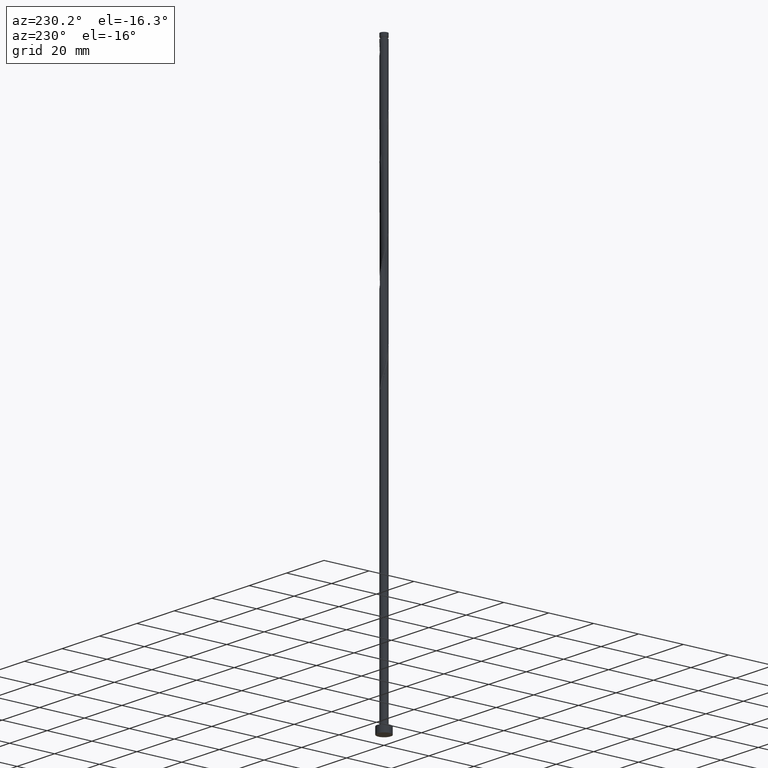
[diagram: clean part render]
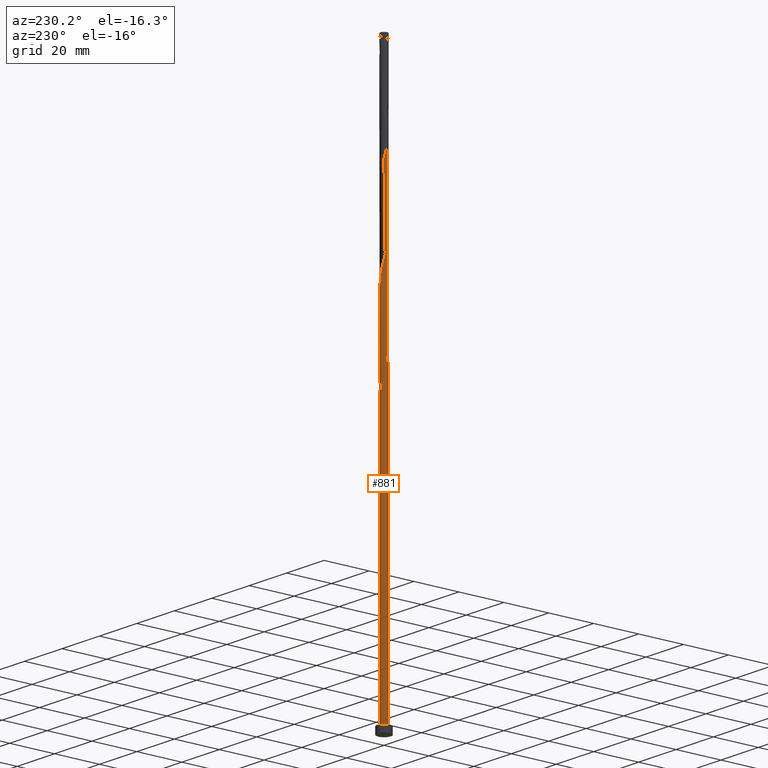
[diagram: same view with one face highlighted and labeled with its STEP entity id]
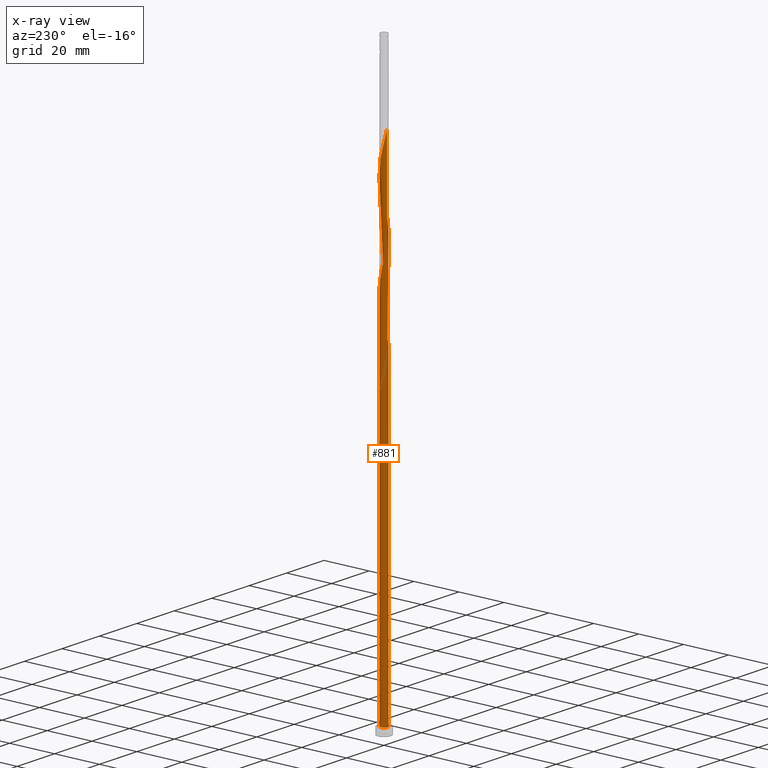
[diagram: x-ray of the same camera — body ghosted, the highlighted face saturated]
A machine part, auxiliary view. The second image highlights one B-rep face of the part: STEP entity #881.
The next image is the same camera in x-ray: the body ghosted, the highlighted face saturated — about 0% of this face is hidden behind the body in this view.
In plain terms, the highlighted cylindrical surface (bore or boss wall) has radius 1.6 mm, axis along (-0, -0, -1).
Its self-contained STEP definition (entity closure, byte-faithful):
#4 = CARTESIAN_POINT ( 'NONE',  ( -1.547645113330142097, 0.4500416048433590888, 171.7273183717296945 ) ) ;
#14 = CARTESIAN_POINT ( 'NONE',  ( -1.109569170053844367, -1.152760277276255296, 178.9388568332681189 ) ) ;
#23 = CARTESIAN_POINT ( 'NONE',  ( 1.456861787004775088, 0.6894175632154342370, 155.7016773460886441 ) ) ;
#33 = CARTESIAN_POINT ( 'NONE',  ( 1.353200698052672291, 0.8537258756707370999, 156.5029593973705744 ) ) ;
#44 = CARTESIAN_POINT ( 'NONE',  ( 0.5087856495666246426, -1.529339728673692056, 144.4837286281399145 ) ) ;
#66 = CARTESIAN_POINT ( 'NONE',  ( 1.353200698052672291, 0.8537258756707370999, 198.1696260640372884 ) ) ;
#71 = VERTEX_POINT ( 'NONE', #102 ) ;
#75 = CARTESIAN_POINT ( 'NONE',  ( 0.06610299024276559965, 1.598633915154114238, 204.5798824742936404 ) ) ;
#85 = CARTESIAN_POINT ( 'NONE',  ( 1.456861787004775088, 0.6894175632154342370, 197.3683440127553581 ) ) ;
#88 = EDGE_CURVE ( 'NONE', #1591, #71, #1566, .T. ) ;
#99 = CIRCLE ( 'NONE', #187, 1.600000000000000089 ) ;
#102 = CARTESIAN_POINT ( 'NONE',  ( 1.600000000000000089, 0.000000000000000000, 3.000000000000000000 ) ) ;
#118 = DIRECTION ( 'NONE',  ( 1.000000000000000000, 0.000000000000000000, 0.000000000000000000 ) ) ;
#123 = CARTESIAN_POINT ( 'NONE',  ( -1.471308233388665343, 0.6286907684726514844, 129.2593696537809080 ) ) ;
#125 = CARTESIAN_POINT ( 'NONE',  ( -1.579516453325390479, 0.3207344954616279109, 133.2657799101911849 ) ) ;
#144 = CARTESIAN_POINT ( 'NONE',  ( -1.109569170053844367, -1.152760277276255296, 137.2721901666013764 ) ) ;
#147 = CARTESIAN_POINT ( 'NONE',  ( 0.000000000000000000, 0.000000000000000000, 250.0000000000000000 ) ) ;
#155 = CARTESIAN_POINT ( 'NONE',  ( -0.5087856495666250867, 1.529339728673692056, 165.3170619614732288 ) ) ;
#165 = CARTESIAN_POINT ( 'NONE',  ( 0.6333082990155211034, 1.482114516932723891, 160.5093696537809365 ) ) ;
#166 = EDGE_CURVE ( 'NONE', #508, #1376, #555, .T. ) ;
#173 = DIRECTION ( 'NONE',  ( -1.000000000000000000, 0.000000000000000000, 0.000000000000000000 ) ) ;
#176 = CARTESIAN_POINT ( 'NONE',  ( -0.8599962163594112585, 1.363139519914286391, 166.9196260640374021 ) ) ;
#183 = CARTESIAN_POINT ( 'NONE',  ( -0.3183959798741197167, 1.568000000000001837, 164.5157799101912133 ) ) ;
#187 = AXIS2_PLACEMENT_3D ( 'NONE', #1352, #435, #1607 ) ;
#190 = EDGE_CURVE ( 'NONE', #1287, #511, #1426, .T. ) ;
#194 = CARTESIAN_POINT ( 'NONE',  ( -0.3183959798741197167, 1.568000000000001837, 206.1824465768578136 ) ) ;
#203 = CARTESIAN_POINT ( 'NONE',  ( -1.010611572687927895, 1.240429058491149705, 209.3875747819859612 ) ) ;
#210 = CARTESIAN_POINT ( 'NONE',  ( 1.109569170053844811, 1.152760277276255296, 199.7721901666013764 ) ) ;
#233 = CARTESIAN_POINT ( 'NONE',  ( 0.1280063101816154569, 1.606660271326310063, 123.6503952948065574 ) ) ;
#235 = ORIENTED_EDGE ( 'NONE', *, *, #88, .T. ) ;
#245 = DIRECTION ( 'NONE',  ( -0.000000000000000000, -0.000000000000000000, -1.000000000000000000 ) ) ;
#256 = CARTESIAN_POINT ( 'NONE',  ( -1.394971353447189033, 0.8073399321019437691, 128.4580876024988925 ) ) ;
#281 = CARTESIAN_POINT ( 'NONE',  ( -1.353200698052672291, -0.8537258756707369889, 135.6696260640372600 ) ) ;
#288 = CARTESIAN_POINT ( 'NONE',  ( -1.600000000000000311, -2.108787333193360796E-15, 134.5937017860830451 ) ) ;
#290 = CARTESIAN_POINT ( 'NONE',  ( -0.4467602948413325059, -1.536361037957319819, 140.4773183717295808 ) ) ;
#299 = CARTESIAN_POINT ( 'NONE',  ( -1.579516453325393144, -0.3207344954616280219, 133.2657799101911849 ) ) ;
#308 = CARTESIAN_POINT ( 'NONE',  ( -0.6333082990155211034, -1.482114516932723891, 181.3427029871143077 ) ) ;
#315 = CARTESIAN_POINT ( 'NONE',  ( 0.06610299024276559965, 1.598633915154114238, 162.9132158076270116 ) ) ;
#323 = CARTESIAN_POINT ( 'NONE',  ( 1.547645113330142097, -0.4500416048433600325, 192.5606517050629805 ) ) ;
#333 = CARTESIAN_POINT ( 'NONE',  ( -1.600000000000002309, -2.467729857992213798E-16, 215.2711913676326390 ) ) ;
#349 = CARTESIAN_POINT ( 'NONE',  ( 1.579516453325393144, 0.3207344954616277999, 195.7657799101912417 ) ) ;
#368 = CARTESIAN_POINT ( 'NONE',  ( -0.06610299024276375390, 1.598633915154112239, 124.4516773460886156 ) ) ;
#374 = CARTESIAN_POINT ( 'NONE',  ( -1.010611572687927895, 1.240429058491149705, 126.0542414486526610 ) ) ;
#384 = CARTESIAN_POINT ( 'NONE',  ( -0.2602122906671429092, 1.590607558981914416, 125.2529593973706170 ) ) ;
#389 = CARTESIAN_POINT ( 'NONE',  ( 0.3183959798741202718, 1.567999999999999838, 122.8491132435244850 ) ) ;
#392 = CARTESIAN_POINT ( 'NONE',  ( -0.5087856495666250867, 1.529339728673692056, 123.6503952948065859 ) ) ;
#412 = CARTESIAN_POINT ( 'NONE',  ( -0.6333082990155211034, -1.482114516932723891, 139.6760363204475937 ) ) ;
#419 = CARTESIAN_POINT ( 'NONE',  ( -1.600000000000000089, 0.000000000000000000, 250.0000000000000000 ) ) ;
#423 = CARTESIAN_POINT ( 'NONE',  ( -0.06610299024276471147, -1.598633915154114016, 142.0798824742936688 ) ) ;
#432 = CARTESIAN_POINT ( 'NONE',  ( 1.518189120165084116, 0.5050760293385301303, 154.9003952948065432 ) ) ;
#435 = DIRECTION ( 'NONE',  ( 0.000000000000000000, 0.000000000000000000, 1.000000000000000000 ) ) ;
#438 = EDGE_CURVE ( 'NONE', #1327, #1287, #844, .T. ) ;
#444 = CARTESIAN_POINT ( 'NONE',  ( -1.456861787004774644, -0.6894175632154345701, 176.5350106794219869 ) ) ;
#452 = CARTESIAN_POINT ( 'NONE',  ( -1.010611572687927895, 1.240429058491149705, 167.7209081153193324 ) ) ;
#464 = CARTESIAN_POINT ( 'NONE',  ( 1.161226929016444753, -1.117718597068014574, 189.3555234999347476 ) ) ;
#478 = CARTESIAN_POINT ( 'NONE',  ( 1.249539609100571269, 1.018034188126039741, 198.9709081153193893 ) ) ;
#485 = CARTESIAN_POINT ( 'NONE',  ( -0.06610299024276471147, -1.598633915154114016, 183.7465491409603544 ) ) ;
#492 = CARTESIAN_POINT ( 'NONE',  ( -1.600000000000002753, -1.742366839127836297E-15, 131.9378580342993246 ) ) ;
#508 = VERTEX_POINT ( 'NONE', #288 ) ;
#511 = VERTEX_POINT ( 'NONE', #666 ) ;
#513 = EDGE_CURVE ( 'NONE', #1327, #1376, #1007, .T. ) ;
#523 = CARTESIAN_POINT ( 'NONE',  ( -0.6843909329630177840, 1.446239624293988335, 124.4516773460885872 ) ) ;
#534 = CARTESIAN_POINT ( 'NONE',  ( -1.579516453325393144, -0.3207344954616280219, 174.9324465768578136 ) ) ;
#544 = CARTESIAN_POINT ( 'NONE',  ( 1.278099141231816338, -0.9625292645849792272, 148.4901388845501629 ) ) ;
#552 = CARTESIAN_POINT ( 'NONE',  ( 0.1280063101816147353, -1.606660271326313172, 142.8811645255757696 ) ) ;
#555 =( BOUNDED_CURVE ( )  B_SPLINE_CURVE ( 2, ( #1320, #1049, #1574, #125, #754, #1311, #784, #1583, #660, #1700, #1022, #1561, #1015, #384, #368, #233, #747 ),
 .UNSPECIFIED., .F., .T. ) 
 B_SPLINE_CURVE_WITH_KNOTS ( ( 3, 2, 2, 2, 2, 2, 2, 2, 3 ),
 ( 0.9295271625973832164, 0.9326923076923077094, 0.9423076923076922906, 0.9519230769230768718, 0.9615384615384615641, 0.9711538461538461453, 0.9807692307692307265, 0.9903846153846154188, 1.000000000000000000 ),
 .UNSPECIFIED. ) 
 CURVE ( )  GEOMETRIC_REPRESENTATION_ITEM ( )  RATIONAL_B_SPLINE_CURVE ( ( 0.9061636035683098278, 0.9069090390690984771, 0.9090909090909551349, 0.9024626128164584538, 0.9090909090909551349, 0.9024626128164584538, 0.9090909090909551349, 0.9024626128164584538, 0.9090909090909551349, 0.9024626128164584538, 0.9090909090909551349, 0.9024626128164584538, 0.9090909090909551349, 0.9024626128164584538, 0.9090909090909551349, 0.9024626128164584538, 0.9090909090909551349 ) ) 
 REPRESENTATION_ITEM ( '' )  );
#561 = CARTESIAN_POINT ( 'NONE',  ( -1.278099141231816560, 0.9625292645849791162, 169.3234722178834204 ) ) ;
#572 = CARTESIAN_POINT ( 'NONE',  ( -1.594945909006417306, -0.1270730000578373931, 132.4644978589090840 ) ) ;
#581 = CARTESIAN_POINT ( 'NONE',  ( 1.610375364687443245, -0.06658849534595265296, 194.1632158076270969 ) ) ;
#587 = ORIENTED_EDGE ( 'NONE', *, *, #190, .F. ) ;
#599 = CARTESIAN_POINT ( 'NONE',  ( 0.1280063101816147353, -1.606660271326313172, 184.5478311922424837 ) ) ;
#614 = CARTESIAN_POINT ( 'NONE',  ( 0.4467602948413332276, 1.536361037957319819, 202.9773183717295524 ) ) ;
#626 = LINE ( 'NONE', #1113, #1313 ) ;
#629 = CARTESIAN_POINT ( 'NONE',  ( -1.278099141231816560, 0.9625292645849791162, 127.6568055512168058 ) ) ;
#651 = CARTESIAN_POINT ( 'NONE',  ( -1.547645113330142097, 0.4500416048433590888, 130.0606517050630089 ) ) ;
#660 = CARTESIAN_POINT ( 'NONE',  ( -1.109569170053842813, 1.152760277276254630, 129.2593696537809365 ) ) ;
#666 = CARTESIAN_POINT ( 'NONE',  ( -1.600000000000002309, -2.467729857992213798E-16, 215.2711913676326390 ) ) ;
#669 = CARTESIAN_POINT ( 'NONE',  ( -1.594945909006417306, -0.1270730000578373931, 174.1311645255757412 ) ) ;
#677 = CARTESIAN_POINT ( 'NONE',  ( -0.8014535150113197837, -1.384800441679596705, 138.8747542691655497 ) ) ;
#686 = CARTESIAN_POINT ( 'NONE',  ( -0.6843909329630177840, 1.446239624293988335, 166.1183440127552728 ) ) ;
#694 = CARTESIAN_POINT ( 'NONE',  ( -1.353200698052672291, -0.8537258756707369889, 177.3362927307039172 ) ) ;
#700 = CARTESIAN_POINT ( 'NONE',  ( -0.1280063101816145688, 1.606660271326313172, 205.3811645255757696 ) ) ;
#711 = CARTESIAN_POINT ( 'NONE',  ( 0.8014535150113202278, 1.384800441679596705, 201.3747542691654360 ) ) ;
#718 = CARTESIAN_POINT ( 'NONE',  ( -1.161226929016444753, 1.117718597068014352, 210.1888568332681189 ) ) ;
#723 = EDGE_CURVE ( 'NONE', #71, #1591, #99, .T. ) ;
#726 = CARTESIAN_POINT ( 'NONE',  ( 0.6843909329630173399, -1.446239624293988557, 186.9516773460886156 ) ) ;
#747 = CARTESIAN_POINT ( 'NONE',  ( 0.3183959798741203273, 1.567999999999999838, 122.8491132435244850 ) ) ;
#754 = CARTESIAN_POINT ( 'NONE',  ( -1.518189120165081230, 0.5050760293385311295, 132.4644978589091409 ) ) ;
#778 = LINE ( 'NONE', #419, #785 ) ;
#784 = CARTESIAN_POINT ( 'NONE',  ( -1.353200698052670070, 0.8537258756707366558, 130.8619337563450244 ) ) ;
#785 = VECTOR ( 'NONE', #245, 1000.000000000000000 ) ;
#788 = EDGE_LOOP ( 'NONE', ( #1175, #587, #1243, #235, #1240, #794, #822, #1560, #934 ) ) ;
#793 = CARTESIAN_POINT ( 'NONE',  ( 0.000000000000000000, 0.000000000000000000, 122.8491132435244850 ) ) ;
#794 = ORIENTED_EDGE ( 'NONE', *, *, #1568, .F. ) ;
#796 = CARTESIAN_POINT ( 'NONE',  ( -0.1280063101816145688, 1.606660271326313172, 163.7144978589091124 ) ) ;
#804 = CARTESIAN_POINT ( 'NONE',  ( 0.4467602948413332276, 1.536361037957319819, 161.3106517050628952 ) ) ;
#814 = CARTESIAN_POINT ( 'NONE',  ( 0.3183959798741198832, -1.568000000000001837, 143.6824465768577568 ) ) ;
#816 = AXIS2_PLACEMENT_3D ( 'NONE', #1030, #1433, #118 ) ;
#822 = ORIENTED_EDGE ( 'NONE', *, *, #438, .F. ) ;
#824 = CARTESIAN_POINT ( 'NONE',  ( -0.4467602948413325059, -1.536361037957319819, 182.1439850383962664 ) ) ;
#832 = CARTESIAN_POINT ( 'NONE',  ( 1.010611572687927673, -1.240429058491149705, 146.8875747819860180 ) ) ;
#839 = CARTESIAN_POINT ( 'NONE',  ( 0.6333082990155211034, 1.482114516932723891, 202.1760363204476221 ) ) ;
#844 =( BOUNDED_CURVE ( )  B_SPLINE_CURVE ( 2, ( #1572, #392, #523, #1045, #374, #902, #629, #256, #123, #651, #1581, #1276, #492 ),
 .UNSPECIFIED., .F., .T. ) 
 B_SPLINE_CURVE_WITH_KNOTS ( ( 3, 2, 2, 2, 2, 2, 3 ),
 ( 0.000000000000000000, 0.009615384615384581224, 0.01923076923076927347, 0.02884615384615385469, 0.03846153846153843592, 0.04807692307692312816, 0.05452716259738357024 ),
 .UNSPECIFIED. ) 
 CURVE ( )  GEOMETRIC_REPRESENTATION_ITEM ( )  RATIONAL_B_SPLINE_CURVE ( ( 0.9090909090909612411, 0.9024626128164643379, 0.9090909090909612411, 0.9024626128164643379, 0.9090909090909612411, 0.9024626128164643379, 0.9090909090909612411, 0.9024626128164643379, 0.9090909090909612411, 0.9024626128164643379, 0.9090909090909612411, 0.9046444828383208847, 0.9061636035683160451 ) ) 
 REPRESENTATION_ITEM ( '' )  );
#881 = ADVANCED_FACE ( 'NONE', ( #967 ), #1333, .T. ) ;
#902 = CARTESIAN_POINT ( 'NONE',  ( -1.161226929016444753, 1.117718597068014352, 126.8555234999347761 ) ) ;
#924 = CARTESIAN_POINT ( 'NONE',  ( 1.579516453325393144, 0.3207344954616277999, 154.0991132435245561 ) ) ;
#934 = ORIENTED_EDGE ( 'NONE', *, *, #166, .F. ) ;
#936 = CARTESIAN_POINT ( 'NONE',  ( 0.8599962163594108144, -1.363139519914286391, 146.0862927307039740 ) ) ;
#949 = CARTESIAN_POINT ( 'NONE',  ( 0.6843909329630173399, -1.446239624293988557, 145.2850106794219300 ) ) ;
#957 = CARTESIAN_POINT ( 'NONE',  ( -0.8014535150113197837, -1.384800441679596705, 180.5414209358321784 ) ) ;
#966 = CARTESIAN_POINT ( 'NONE',  ( 0.2602122906671444080, 1.590607558981916636, 162.1119337563449960 ) ) ;
#967 = FACE_OUTER_BOUND ( 'NONE', #788, .T. ) ;
#973 = CARTESIAN_POINT ( 'NONE',  ( 0.5087856495666246426, -1.529339728673692056, 186.1503952948066285 ) ) ;
#981 = CARTESIAN_POINT ( 'NONE',  ( -0.5087856495666250867, 1.529339728673692056, 206.9837286281399429 ) ) ;
#996 = CARTESIAN_POINT ( 'NONE',  ( -1.579010239008791894, 0.2583150500946561068, 214.1952670896782820 ) ) ;
#1003 = CARTESIAN_POINT ( 'NONE',  ( 1.394971353447188811, -0.8073399321019441022, 190.9580876024988640 ) ) ;
#1007 = CIRCLE ( 'NONE', #1682, 1.600000000000000089 ) ;
#1015 = CARTESIAN_POINT ( 'NONE',  ( -0.4467602948413312292, 1.536361037957318043, 126.0542414486527036 ) ) ;
#1022 = CARTESIAN_POINT ( 'NONE',  ( -0.8014535150113182294, 1.384800441679596039, 127.6568055512168058 ) ) ;
#1030 = CARTESIAN_POINT ( 'NONE',  ( 0.000000000000000000, 0.000000000000000000, 3.000000000000000000 ) ) ;
#1045 = CARTESIAN_POINT ( 'NONE',  ( -0.8599962163594112585, 1.363139519914286391, 125.2529593973706312 ) ) ;
#1049 = CARTESIAN_POINT ( 'NONE',  ( -1.600000000000000311, 0.06363700853882878206, 134.3295308704500712 ) ) ;
#1056 = CARTESIAN_POINT ( 'NONE',  ( 1.610375364687443245, -0.06658849534595265296, 152.4965491409603828 ) ) ;
#1065 = CARTESIAN_POINT ( 'NONE',  ( 1.547645113330142097, -0.4500416048433600325, 150.8939850383963233 ) ) ;
#1073 = CARTESIAN_POINT ( 'NONE',  ( 1.109569170053844811, 1.152760277276255296, 158.1055234999346908 ) ) ;
#1082 = CARTESIAN_POINT ( 'NONE',  ( -1.610375364687443245, 0.06658849534595275010, 173.3298824742937256 ) ) ;
#1091 = CARTESIAN_POINT ( 'NONE',  ( 1.594945909006417528, 0.1270730000578368657, 153.2978311922424552 ) ) ;
#1113 = CARTESIAN_POINT ( 'NONE',  ( -1.600000000000000089, 0.000000000000000000, 250.0000000000000000 ) ) ;
#1115 = CARTESIAN_POINT ( 'NONE',  ( -1.471308233388665343, 0.6286907684726514844, 212.5927029871142508 ) ) ;
#1150 = EDGE_CURVE ( 'NONE', #511, #508, #626, .T. ) ;
#1171 = CARTESIAN_POINT ( 'NONE',  ( -1.600000000000000089, 0.000000000000000000, 3.000000000000000000 ) ) ;
#1175 = ORIENTED_EDGE ( 'NONE', *, *, #1150, .F. ) ;
#1184 = CARTESIAN_POINT ( 'NONE',  ( -1.161226929016444753, 1.117718597068014352, 168.5221901666014617 ) ) ;
#1193 = CARTESIAN_POINT ( 'NONE',  ( -1.249539609100570825, -1.018034188126040407, 178.1375747819860464 ) ) ;
#1203 = CARTESIAN_POINT ( 'NONE',  ( -0.2602122906671441860, -1.590607558981916636, 141.2786004230117101 ) ) ;
#1215 = CARTESIAN_POINT ( 'NONE',  ( 1.394971353447188811, -0.8073399321019441022, 149.2914209358322353 ) ) ;
#1223 = CARTESIAN_POINT ( 'NONE',  ( -1.249539609100570825, -1.018034188126040407, 136.4709081153193893 ) ) ;
#1233 = CARTESIAN_POINT ( 'NONE',  ( -1.278099141231816560, 0.9625292645849791162, 210.9901388845500776 ) ) ;
#1240 = ORIENTED_EDGE ( 'NONE', *, *, #723, .T. ) ;
#1243 = ORIENTED_EDGE ( 'NONE', *, *, #1568, .T. ) ;
#1253 = CARTESIAN_POINT ( 'NONE',  ( -0.6843909329630177840, 1.446239624293988335, 207.7850106794219016 ) ) ;
#1263 = CARTESIAN_POINT ( 'NONE',  ( 1.594945909006417528, 0.1270730000578368657, 194.9644978589090556 ) ) ;
#1267 = DIRECTION ( 'NONE',  ( -0.000000000000000000, -0.000000000000000000, -1.000000000000000000 ) ) ;
#1269 = CARTESIAN_POINT ( 'NONE',  ( 1.278099141231816338, -0.9625292645849792272, 190.1568055512167916 ) ) ;
#1276 = CARTESIAN_POINT ( 'NONE',  ( -1.600000000000003642, 0.1300103016592670524, 131.3981572969510125 ) ) ;
#1287 = VERTEX_POINT ( 'NONE', #1543 ) ;
#1293 = CARTESIAN_POINT ( 'NONE',  ( -1.600000000000001643, -0.06363700853883533237, 132.2020289499322701 ) ) ;
#1311 = CARTESIAN_POINT ( 'NONE',  ( -1.456861787004772646, 0.6894175632154339040, 131.6632158076270684 ) ) ;
#1313 = VECTOR ( 'NONE', #1267, 1000.000000000000000 ) ;
#1320 = CARTESIAN_POINT ( 'NONE',  ( -1.600000000000000311, -2.108787333193360796E-15, 134.5937017860830451 ) ) ;
#1327 = VERTEX_POINT ( 'NONE', #1391 ) ;
#1329 = CARTESIAN_POINT ( 'NONE',  ( 0.9695987310071201293, 1.287486366426470852, 158.9068055512168485 ) ) ;
#1333 = CYLINDRICAL_SURFACE ( 'NONE', #1512, 1.600000000000000089 ) ;
#1339 = CARTESIAN_POINT ( 'NONE',  ( 1.579010239008791894, -0.2583150500946562733, 151.6952670896783388 ) ) ;
#1350 = CARTESIAN_POINT ( 'NONE',  ( 1.161226929016444753, -1.117718597068014574, 147.6888568332681189 ) ) ;
#1352 = CARTESIAN_POINT ( 'NONE',  ( 0.000000000000000000, 0.000000000000000000, 3.000000000000000000 ) ) ;
#1358 = CARTESIAN_POINT ( 'NONE',  ( -0.2602122906671441860, -1.590607558981916636, 182.9452670896783957 ) ) ;
#1359 = DIRECTION ( 'NONE',  ( -0.000000000000000000, -0.000000000000000000, -1.000000000000000000 ) ) ;
#1367 = CARTESIAN_POINT ( 'NONE',  ( 1.249539609100571269, 1.018034188126039741, 157.3042414486527321 ) ) ;
#1376 = VERTEX_POINT ( 'NONE', #389 ) ;
#1377 = CARTESIAN_POINT ( 'NONE',  ( 0.2602122906671444080, 1.590607558981916636, 203.7786004230117101 ) ) ;
#1386 = CARTESIAN_POINT ( 'NONE',  ( 0.3183959798741198832, -1.568000000000001837, 185.3491132435244992 ) ) ;
#1391 = CARTESIAN_POINT ( 'NONE',  ( -0.3183959798741197722, 1.568000000000001837, 122.8491132435244850 ) ) ;
#1393 = CARTESIAN_POINT ( 'NONE',  ( 1.471308233388665343, -0.6286907684726514844, 191.7593696537809080 ) ) ;
#1400 = CARTESIAN_POINT ( 'NONE',  ( -1.600000000000003197, 0.1300103016592674687, 214.7314906302843838 ) ) ;
#1407 = CARTESIAN_POINT ( 'NONE',  ( -0.8599962163594112585, 1.363139519914286391, 208.5862927307040025 ) ) ;
#1423 = CARTESIAN_POINT ( 'NONE',  ( -1.600000000000002753, -1.742366839127836297E-15, 131.9378580342993246 ) ) ;
#1426 =( BOUNDED_CURVE ( )  B_SPLINE_CURVE ( 2, ( #1423, #1293, #572, #299, #1498, #1593, #281, #1223, #144, #1614, #677, #412, #290, #1203, #423, #552, #814, #44, #949, #936, #832, #1350, #544, #1215, #1634, #1065, #1339, #1056, #1091, #924, #432, #23, #33, #1367, #1073, #1329, #1480, #165, #804, #966, #315, #796, #183, #155, #686, #176, #452, #1184, #561, #1470, #1492, #4, #1460, #1082, #669, #534, #1625, #444, #694, #1193, #14, #1605, #957, #308, #824, #1358, #485, #599, #1386, #973, #726, #1673, #1504, #464, #1269, #1003, #1393, #323, #1656, #581, #1263, #349, #1536, #85, #66, #478, #210, #1522, #711, #839, #614, #1377, #75, #700, #194, #981, #1253, #1407, #203, #718, #1233, #1639, #1115, #1515, #996, #1400, #333 ),
 .UNSPECIFIED., .F., .T. ) 
 B_SPLINE_CURVE_WITH_KNOTS ( ( 3, 2, 2, 2, 2, 2, 2, 2, 2, 2, 2, 2, 2, 2, 2, 2, 2, 2, 2, 2, 2, 2, 2, 2, 2, 2, 2, 2, 2, 2, 2, 2, 2, 2, 2, 2, 2, 2, 2, 2, 2, 2, 2, 2, 2, 2, 2, 2, 2, 2, 2, 2, 2, 3 ),
 ( 0.05452716259738357024, 0.05769230769230770939, 0.06730769230769229061, 0.07692307692307687184, 0.08653846153846156408, 0.09615384615384614531, 0.1057692307692307265, 0.1153846153846154188, 0.1250000000000000000, 0.1346153846153845812, 0.1442307692307692735, 0.1538461538461538547, 0.1634615384615384359, 0.1730769230769231282, 0.1826923076923077094, 0.1923076923076922906, 0.2019230769230768718, 0.2115384615384615641, 0.2211538461538461453, 0.2307692307692307265, 0.2403846153846154188, 0.2500000000000000000, 0.2596153846153845812, 0.2692307692307692735, 0.2788461538461538547, 0.2884615384615384359, 0.2980769230769231282, 0.3076923076923077094, 0.3173076923076922906, 0.3269230769230768718, 0.3365384615384615641, 0.3461538461538461453, 0.3557692307692307265, 0.3653846153846154188, 0.3750000000000000000, 0.3846153846153845812, 0.3942307692307692735, 0.4038461538461538547, 0.4134615384615384359, 0.4230769230769231282, 0.4326923076923077094, 0.4423076923076922906, 0.4519230769230768718, 0.4615384615384615641, 0.4711538461538461453, 0.4807692307692307265, 0.4903846153846154188, 0.5000000000000000000, 0.5096153846153845812, 0.5192307692307691624, 0.5288461538461538547, 0.5384615384615384359, 0.5480769230769231282, 0.5545271625973835494 ),
 .UNSPECIFIED. ) 
 CURVE ( )  GEOMETRIC_REPRESENTATION_ITEM ( )  RATIONAL_B_SPLINE_CURVE ( ( 0.9061636035683160451, 0.9069090390691048054, 0.9090909090909612411, 0.9024626128164643379, 0.9090909090909612411, 0.9024626128164643379, 0.9090909090909612411, 0.9024626128164643379, 0.9090909090909612411, 0.9024626128164643379, 0.9090909090909612411, 0.9024626128164643379, 0.9090909090909612411, 0.9024626128164643379, 0.9090909090909612411, 0.9024626128164643379, 0.9090909090909612411, 0.9024626128164643379, 0.9090909090909612411, 0.9024626128164643379, 0.9090909090909612411, 0.9024626128164643379, 0.9090909090909612411, 0.9024626128164643379, 0.9090909090909612411, 0.9024626128164643379, 0.9090909090909612411, 0.9024626128164643379, 0.9090909090909612411, 0.9024626128164643379, 0.9090909090909612411, 0.9024626128164643379, 0.9090909090909612411, 0.9024626128164643379, 0.9090909090909612411, 0.9024626128164643379, 0.9090909090909612411, 0.9024626128164643379, 0.9090909090909612411, 0.9024626128164643379, 0.9090909090909612411, 0.9024626128164643379, 0.9090909090909612411, 0.9024626128164643379, 0.9090909090909612411, 0.9024626128164643379, 0.9090909090909612411, 0.9024626128164643379, 0.9090909090909612411, 0.9024626128164643379, 0.9090909090909612411, 0.9024626128164643379, 0.9090909090909612411, 0.9024626128164643379, 0.9090909090909612411, 0.9024626128164643379, 0.9090909090909612411, 0.9024626128164643379, 0.9090909090909612411, 0.9024626128164643379, 0.9090909090909612411, 0.9024626128164643379, 0.9090909090909612411, 0.9024626128164643379, 0.9090909090909612411, 0.9024626128164643379, 0.9090909090909612411, 0.9024626128164643379, 0.9090909090909612411, 0.9024626128164643379, 0.9090909090909612411, 0.9024626128164643379, 0.9090909090909612411, 0.9024626128164643379, 0.9090909090909612411, 0.9024626128164643379, 0.9090909090909612411, 0.9024626128164643379, 0.9090909090909612411, 0.9024626128164643379, 0.9090909090909612411, 0.9024626128164643379, 0.9090909090909612411, 0.9024626128164643379, 0.9090909090909612411, 0.9024626128164643379, 0.9090909090909612411, 0.9024626128164643379, 0.9090909090909612411, 0.9024626128164643379, 0.9090909090909612411, 0.9024626128164643379, 0.9090909090909612411, 0.9024626128164643379, 0.9090909090909612411, 0.9024626128164643379, 0.9090909090909612411, 0.9024626128164643379, 0.9090909090909612411, 0.9024626128164643379, 0.9090909090909612411, 0.9024626128164643379, 0.9090909090909612411, 0.9024626128164643379, 0.9090909090909612411, 0.9046444828383208847, 0.9061636035683159340 ) ) 
 REPRESENTATION_ITEM ( '' )  );
#1433 = DIRECTION ( 'NONE',  ( 0.000000000000000000, 0.000000000000000000, 1.000000000000000000 ) ) ;
#1460 = CARTESIAN_POINT ( 'NONE',  ( -1.579010239008791894, 0.2583150500946561068, 172.5286004230116248 ) ) ;
#1470 = CARTESIAN_POINT ( 'NONE',  ( -1.394971353447189033, 0.8073399321019437691, 170.1247542691655497 ) ) ;
#1473 = DIRECTION ( 'NONE',  ( -1.000000000000000000, 0.000000000000000000, 0.000000000000000000 ) ) ;
#1478 = DIRECTION ( 'NONE',  ( 0.000000000000000000, -0.000000000000000000, -1.000000000000000000 ) ) ;
#1480 = CARTESIAN_POINT ( 'NONE',  ( 0.8014535150113202278, 1.384800441679596705, 159.7080876024988356 ) ) ;
#1492 = CARTESIAN_POINT ( 'NONE',  ( -1.471308233388665343, 0.6286907684726514844, 170.9260363204475368 ) ) ;
#1498 = CARTESIAN_POINT ( 'NONE',  ( -1.518189120165083450, -0.5050760293385309074, 134.0670619614732004 ) ) ;
#1504 = CARTESIAN_POINT ( 'NONE',  ( 1.010611572687927673, -1.240429058491149705, 188.5542414486526752 ) ) ;
#1512 = AXIS2_PLACEMENT_3D ( 'NONE', #147, #1359, #1473 ) ;
#1515 = CARTESIAN_POINT ( 'NONE',  ( -1.547645113330142097, 0.4500416048433590888, 213.3939850383963801 ) ) ;
#1522 = CARTESIAN_POINT ( 'NONE',  ( 0.9695987310071201293, 1.287486366426470852, 200.5734722178835057 ) ) ;
#1536 = CARTESIAN_POINT ( 'NONE',  ( 1.518189120165084116, 0.5050760293385301303, 196.5670619614731720 ) ) ;
#1543 = CARTESIAN_POINT ( 'NONE',  ( -1.600000000000002753, -1.742366839127836297E-15, 131.9378580342993246 ) ) ;
#1560 = ORIENTED_EDGE ( 'NONE', *, *, #513, .T. ) ;
#1561 = CARTESIAN_POINT ( 'NONE',  ( -0.6333082990155194381, 1.482114516932721004, 126.8555234999347334 ) ) ;
#1566 = CIRCLE ( 'NONE', #816, 1.600000000000000089 ) ;
#1568 = EDGE_CURVE ( 'NONE', #1287, #1591, #778, .T. ) ;
#1572 = CARTESIAN_POINT ( 'NONE',  ( -0.3183959798741197722, 1.568000000000001837, 122.8491132435244708 ) ) ;
#1574 = CARTESIAN_POINT ( 'NONE',  ( -1.594945909006415530, 0.1270730000578380314, 134.0670619614732288 ) ) ;
#1581 = CARTESIAN_POINT ( 'NONE',  ( -1.579010239008791894, 0.2583150500946561068, 130.8619337563449676 ) ) ;
#1583 = CARTESIAN_POINT ( 'NONE',  ( -1.249539609100568827, 1.018034188126038853, 130.0606517050629520 ) ) ;
#1591 = VERTEX_POINT ( 'NONE', #1171 ) ;
#1593 = CARTESIAN_POINT ( 'NONE',  ( -1.456861787004774644, -0.6894175632154345701, 134.8683440127553013 ) ) ;
#1605 = CARTESIAN_POINT ( 'NONE',  ( -0.9695987310071195742, -1.287486366426471518, 179.7401388845501629 ) ) ;
#1607 = DIRECTION ( 'NONE',  ( 1.000000000000000000, 0.000000000000000000, 0.000000000000000000 ) ) ;
#1614 = CARTESIAN_POINT ( 'NONE',  ( -0.9695987310071195742, -1.287486366426471518, 138.0734722178835057 ) ) ;
#1625 = CARTESIAN_POINT ( 'NONE',  ( -1.518189120165083450, -0.5050760293385309074, 175.7337286281398292 ) ) ;
#1634 = CARTESIAN_POINT ( 'NONE',  ( 1.471308233388665343, -0.6286907684726514844, 150.0927029871142224 ) ) ;
#1639 = CARTESIAN_POINT ( 'NONE',  ( -1.394971353447189033, 0.8073399321019437691, 211.7914209358322637 ) ) ;
#1656 = CARTESIAN_POINT ( 'NONE',  ( 1.579010239008791894, -0.2583150500946562733, 193.3619337563449960 ) ) ;
#1673 = CARTESIAN_POINT ( 'NONE',  ( 0.8599962163594108144, -1.363139519914286391, 187.7529593973706596 ) ) ;
#1682 = AXIS2_PLACEMENT_3D ( 'NONE', #793, #1478, #173 ) ;
#1700 = CARTESIAN_POINT ( 'NONE',  ( -0.9695987310071170207, 1.287486366426469520, 128.4580876024988640 ) ) ;